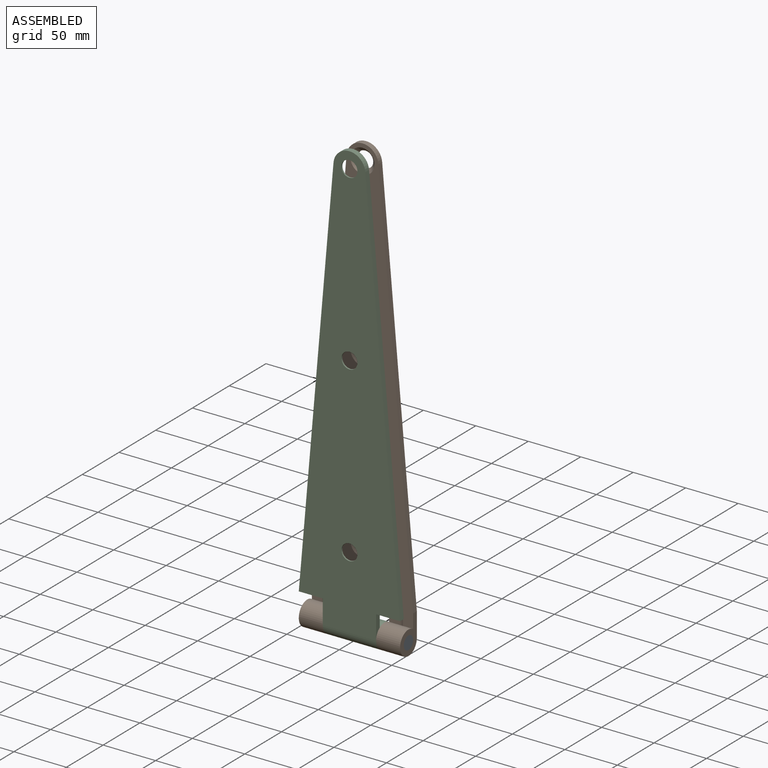
[diagram: assembled view]
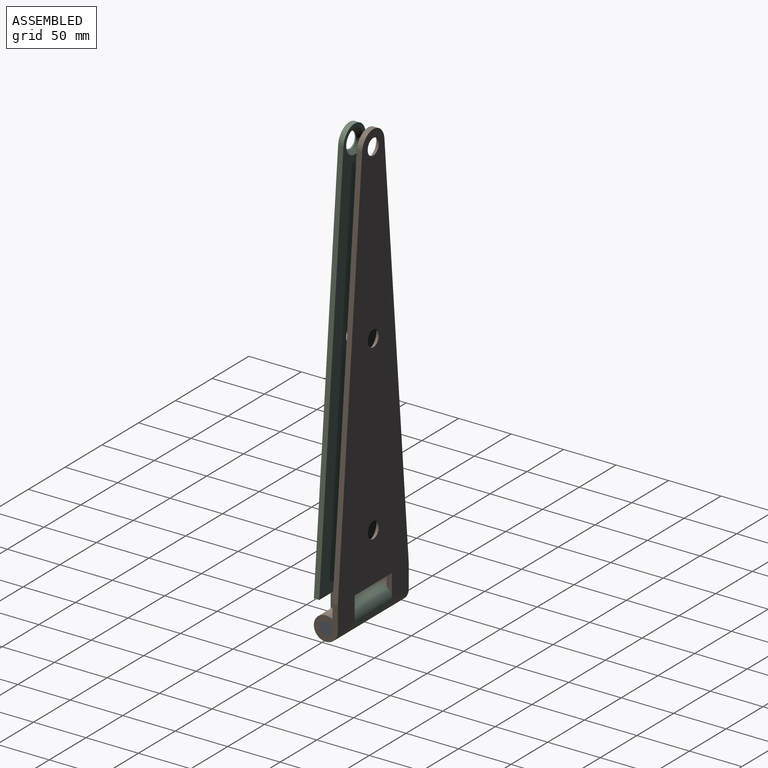
[diagram: assembled view, second angle]
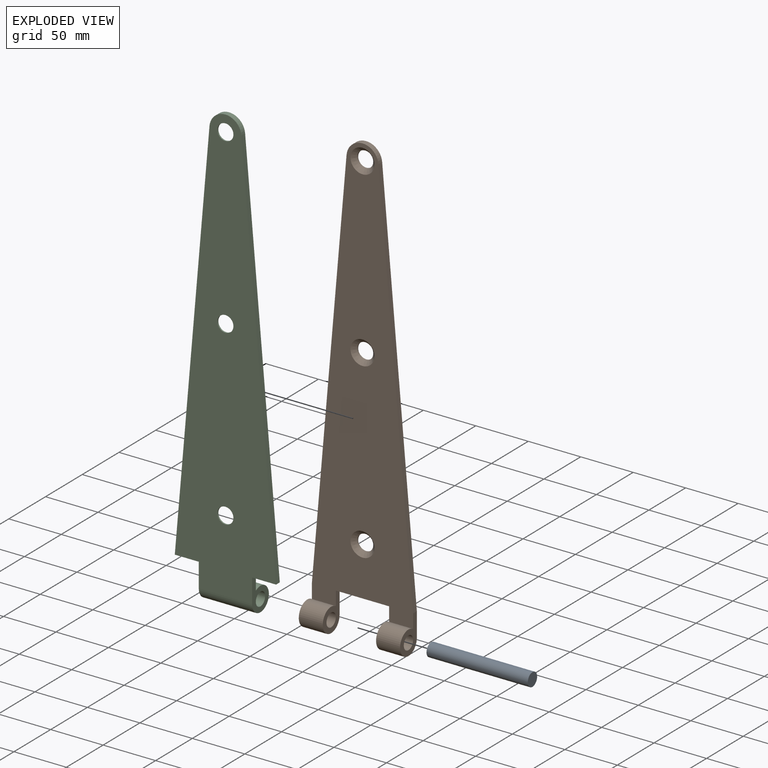
[diagram: exploded view]
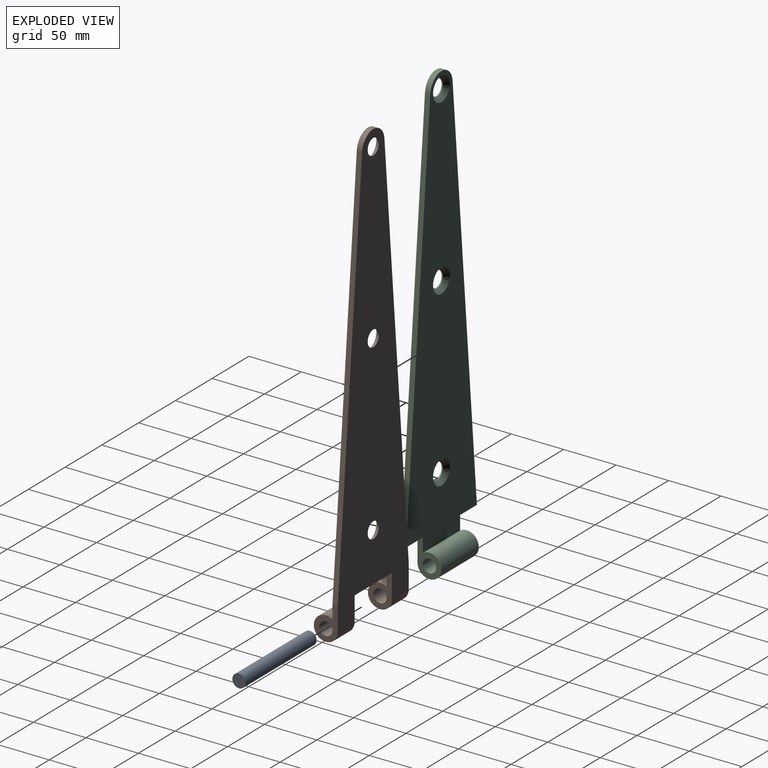
[diagram: exploded view, second angle]
ASSEMBLY  parts=3 mates=2
PART A: 3 faces, bbox 96.5x12.7x12.7 mm
  f0: plane 12.7x12.7mm, normal (1,0,0), area 126.7mm2, adj f1
  f1: cylinder r=6.35mm len=96.52mm, axis (-1,0,0), area 3851mm2, adj f0,f2
  f2: plane 12.7x12.7mm, normal (-1,0,0), area 126.7mm2, adj f1
PART B: 20 faces, bbox 96.5x22.9x426.3 mm
  f0: plane 405.35x96.52mm, normal (0,-1,0), area 23690.1mm2, adj f1,f2,f3,f5,f7,f9,f11,f12
  f1: plane 50.8x5.08mm, normal (0,0,-1), area 258.1mm2, adj f0,f4,f12,f14
  f2: plane 378.08x33.08mm, normal (1,0,0.09), area 1928mm2, adj f0,f4,f5,f15
  f3: plane 378.08x33.08mm, normal (-1,0,0.09), area 1928mm2, adj f0,f4,f5,f13
  f4: plane 414.86x96.52mm, normal (0,1,0), area 24808.7mm2, adj f1,f2,f3,f5,f6,f8,f10,f12
  f5: cylinder r=15.24mm len=30.36mm, axis (0,-1,0), area 229.7mm2, adj f0,f2,f3,f4
  f6: cylinder r=7.62mm len=15.24mm, axis (0,-1,0), area 60.8mm2, adj f4,f7
  f7: cone r=7.62mm half-angle=45deg, axis (0,-1,0), area 322.5mm2, adj f0,f6
  f8: cylinder r=7.62mm len=15.24mm, axis (0,-1,0), area 60.8mm2, adj f4,f9
  f9: cone r=7.62mm half-angle=45deg, axis (0,-1,0), area 322.5mm2, adj f0,f8
  f10: cylinder r=7.62mm len=15.24mm, axis (0,-1,0), area 60.8mm2, adj f4,f11
  f11: cone r=7.62mm half-angle=45deg, axis (0,-1,0), area 322.5mm2, adj f0,f10
  f12: plane 34.29x22.86mm, normal (1,0,0), area 365.9mm2, adj f0,f1,f4,f16,f17
  f13: plane 34.29x22.86mm, normal (-1,0,0), area 365.9mm2, adj f0,f3,f4,f16,f17
  f14: plane 34.29x22.86mm, normal (-1,0,0), area 365.9mm2, adj f0,f1,f4,f18,f19
  f15: plane 34.29x22.86mm, normal (1,0,0), area 365.9mm2, adj f0,f2,f4,f18,f19
  f16: cylinder r=6.35mm len=22.86mm, axis (1,0,0), area 912.1mm2, adj f12,f13
  f17: cylinder r=11.43mm len=22.86mm, axis (1,0,0), area 1385.2mm2, adj f0,f4,f12,f13
  f18: cylinder r=6.35mm len=22.86mm, axis (1,0,0), area 912.1mm2, adj f14,f15
  f19: cylinder r=11.43mm len=22.86mm, axis (1,0,0), area 1385.2mm2, adj f0,f4,f14,f15
PART C: 17 faces, bbox 96.5x22.9x426.3 mm
  f0: plane 22.86x5.08mm, normal (0,0,-1), area 116.1mm2, adj f3,f4,f5,f7
  f1: plane 22.86x5.08mm, normal (0,0,-1), area 116.1mm2, adj f2,f4,f5,f6
  f2: plane 378.08x33.08mm, normal (1,0,0.09), area 1928mm2, adj f1,f4,f5,f10
  f3: plane 378.08x33.08mm, normal (-1,0,0.09), area 1928mm2, adj f0,f4,f5,f10
  f4: plane 405.35x96.52mm, normal (0,-1,0), area 23757.9mm2, adj f0,f1,f2,f3,f6,f7,f9,f10
  f5: plane 414.86x96.52mm, normal (0,1,0), area 24924.8mm2, adj f0,f1,f2,f3,f6,f7,f9,f10
  f6: plane 34.29x22.86mm, normal (1,0,0), area 365.9mm2, adj f1,f4,f5,f8,f9
  f7: plane 34.29x22.86mm, normal (-1,0,0), area 365.9mm2, adj f0,f4,f5,f8,f9
  f8: cylinder r=6.35mm len=50.8mm, axis (-1,0,0), area 2026.8mm2, adj f6,f7
  f9: cylinder r=11.43mm len=50.8mm, axis (-1,0,0), area 3078.2mm2, adj f4,f5,f6,f7
  f10: cylinder r=15.24mm len=30.36mm, axis (0,-1,0), area 229.7mm2, adj f2,f3,f4,f5
  f11: cylinder r=7.62mm len=15.24mm, axis (0,-1,0), area 60.8mm2, adj f5,f12
  f12: cone r=7.62mm half-angle=45deg, axis (0,-1,0), area 322.5mm2, adj f4,f11
  f13: cylinder r=7.62mm len=15.24mm, axis (0,-1,0), area 60.8mm2, adj f5,f14
  f14: cone r=7.62mm half-angle=45deg, axis (0,-1,0), area 322.5mm2, adj f4,f13
  f15: cylinder r=7.62mm len=15.24mm, axis (0,-1,0), area 60.8mm2, adj f5,f16
  f16: cone r=7.62mm half-angle=45deg, axis (0,-1,0), area 322.5mm2, adj f4,f15
PLACE A t=(12.52,171.31,8.33)mm
PLACE B t=(12.52,171.31,8.33)mm fixed
PLACE C rot(axis=(0,0,1),180deg) t=(109.04,148.45,8.33)mm
MATE revolute C.f8 <-> B.f16  axis (1,0,0) through (86.18,159.88,-14.53)mm
MATE fastened A.f1 <-> B.f16  axis (1,0,0) through (109.04,159.88,-14.53)mm
